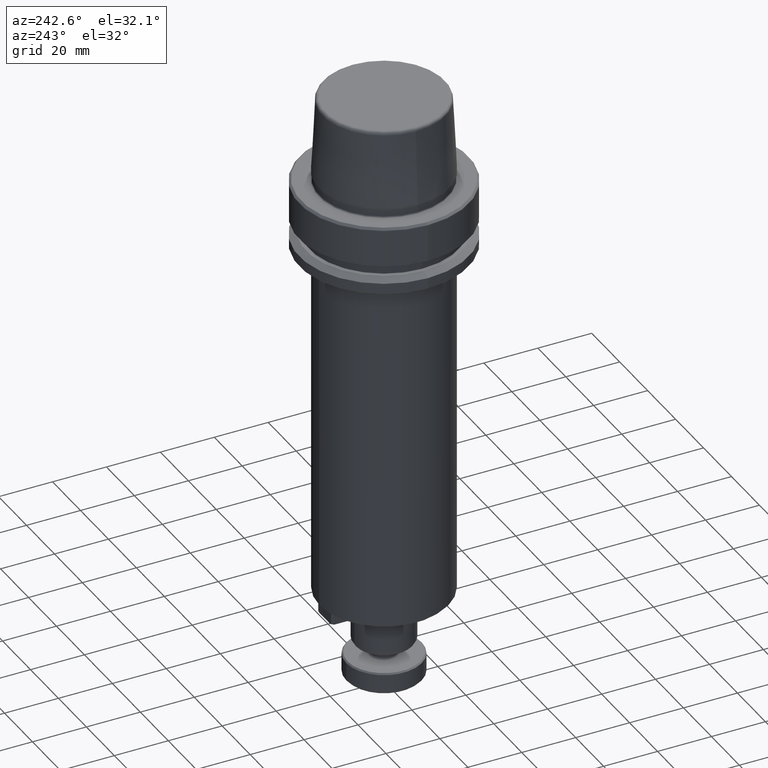
[diagram: clean part render]
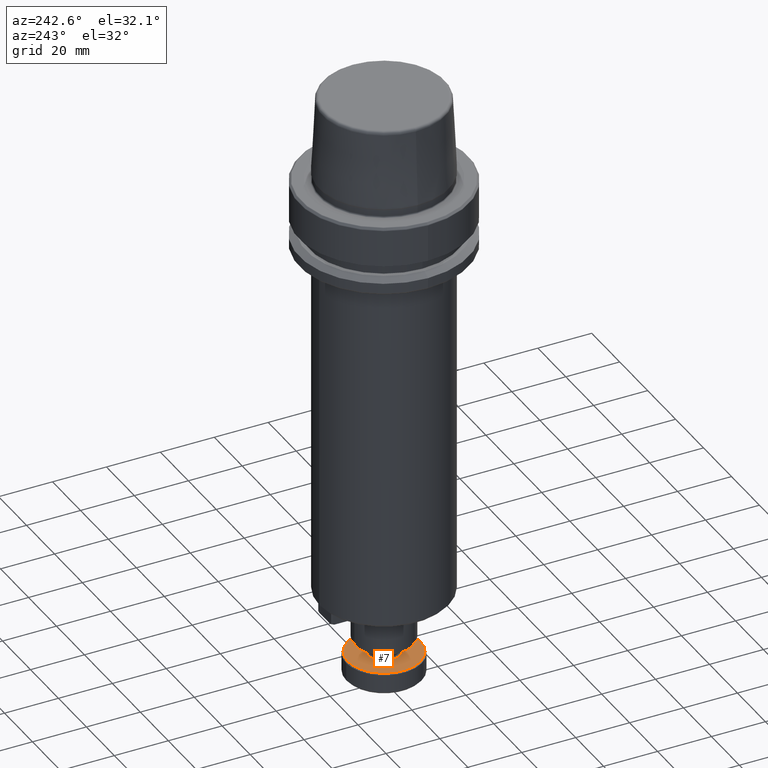
[diagram: same view with one face highlighted and labeled with its STEP entity id]
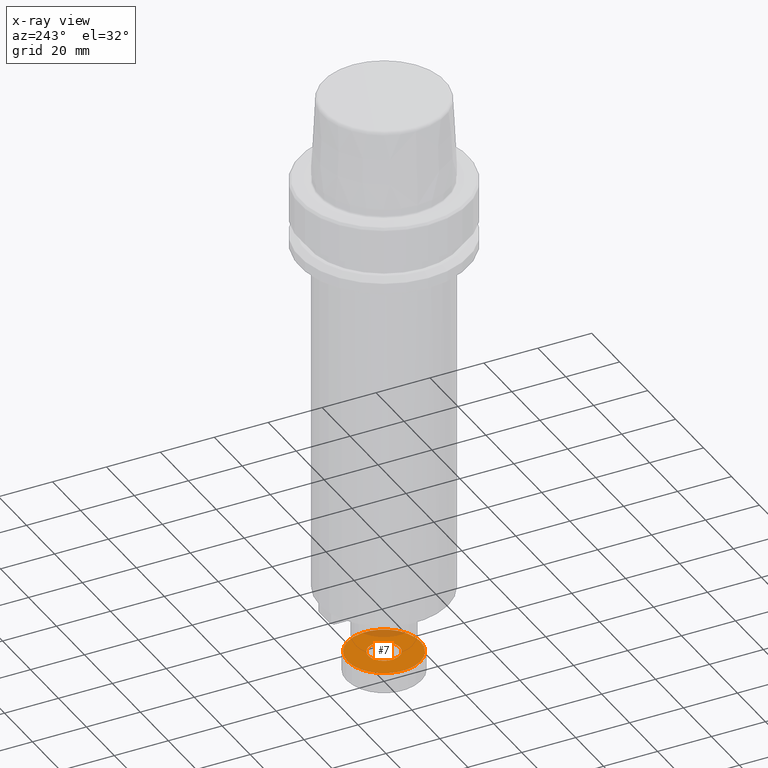
[diagram: x-ray of the same camera — body ghosted, the highlighted face saturated]
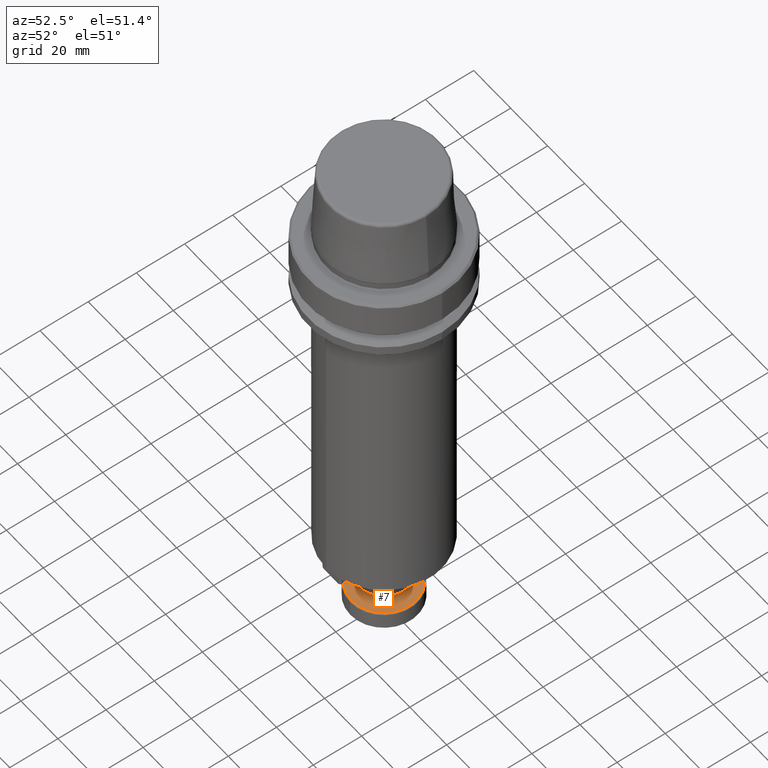
[diagram: same view with one face highlighted and labeled with its STEP entity id]
A machine part, auxiliary view. The second image highlights one B-rep face of the part: STEP entity #7.
The next image is the same camera in x-ray: the body ghosted, the highlighted face saturated — about 10% of this face is hidden behind the body in this view.
A second angle (auxiliary view) of the same face is appended — the face is thin or edge-on in the first view.
In plain terms, the highlighted planar face has unit normal (0, 0, -1).
Its self-contained STEP definition (entity closure, byte-faithful):
#7 = ADVANCED_FACE ( 'NONE', ( #2688, #2441 ), #2534, .F. ) ;
#25 = EDGE_LOOP ( 'NONE', ( #2661, #1661 ) ) ;
#70 = VERTEX_POINT ( 'NONE', #1613 ) ;
#79 = DIRECTION ( 'NONE',  ( 0.0000000000000000000, 1.000000000000000000, 7.859549893731944200E-018 ) ) ;
#285 = EDGE_CURVE ( 'NONE', #1950, #348, #1195, .T. ) ;
#303 = CARTESIAN_POINT ( 'NONE',  ( 0.0000000000000000000, 14.00000000000000000, -184.0000000000000000 ) ) ;
#345 = CARTESIAN_POINT ( 'NONE',  ( 0.0000000000000000000, -1.251500300419339200E-015, -184.0000000000000000 ) ) ;
#348 = VERTEX_POINT ( 'NONE', #1278 ) ;
#411 = DIRECTION ( 'NONE',  ( 0.0000000000000000000, 1.000000000000000000, 0.0000000000000000000 ) ) ;
#468 = EDGE_LOOP ( 'NONE', ( #1042, #1605 ) ) ;
#619 = DIRECTION ( 'NONE',  ( -0.0000000000000000000, -7.859549893731944200E-018, 1.000000000000000000 ) ) ;
#656 = AXIS2_PLACEMENT_3D ( 'NONE', #1927, #619, #411 ) ;
#768 = DIRECTION ( 'NONE',  ( 0.0000000000000000000, 1.000000000000000000, 0.0000000000000000000 ) ) ;
#962 = DIRECTION ( 'NONE',  ( 0.0000000000000000000, 7.859549893731944200E-018, -1.000000000000000000 ) ) ;
#1021 = AXIS2_PLACEMENT_3D ( 'NONE', #2291, #962, #2506 ) ;
#1042 = ORIENTED_EDGE ( 'NONE', *, *, #285, .T. ) ;
#1158 = EDGE_CURVE ( 'NONE', #1940, #70, #1643, .T. ) ;
#1171 = CARTESIAN_POINT ( 'NONE',  ( 0.0000000000000000000, 13.49999999999999600, -184.0000000000000000 ) ) ;
#1195 = CIRCLE ( 'NONE', #656, 13.49999999999999800 ) ;
#1245 = DIRECTION ( 'NONE',  ( -0.0000000000000000000, -7.859549893731944200E-018, 1.000000000000000000 ) ) ;
#1278 = CARTESIAN_POINT ( 'NONE',  ( 1.683889348827610900E-015, -13.50000000000000000, -184.0000000000000000 ) ) ;
#1305 = EDGE_CURVE ( 'NONE', #348, #1950, #2524, .T. ) ;
#1334 = AXIS2_PLACEMENT_3D ( 'NONE', #2308, #1245, #768 ) ;
#1444 = AXIS2_PLACEMENT_3D ( 'NONE', #303, #2464, #79 ) ;
#1605 = ORIENTED_EDGE ( 'NONE', *, *, #1305, .T. ) ;
#1613 = CARTESIAN_POINT ( 'NONE',  ( 7.102951435054648700E-016, -5.800000000000002500, -184.0000000000000000 ) ) ;
#1641 = DIRECTION ( 'NONE',  ( 0.0000000000000000000, 1.000000000000000000, 0.0000000000000000000 ) ) ;
#1643 = CIRCLE ( 'NONE', #2560, 5.800000000000001600 ) ;
#1661 = ORIENTED_EDGE ( 'NONE', *, *, #1987, .T. ) ;
#1851 = DIRECTION ( 'NONE',  ( 0.0000000000000000000, 7.859549893731944200E-018, -1.000000000000000000 ) ) ;
#1927 = CARTESIAN_POINT ( 'NONE',  ( 0.0000000000000000000, -1.251500300419339000E-015, -184.0000000000000000 ) ) ;
#1940 = VERTEX_POINT ( 'NONE', #2272 ) ;
#1950 = VERTEX_POINT ( 'NONE', #1171 ) ;
#1987 = EDGE_CURVE ( 'NONE', #70, #1940, #2444, .T. ) ;
#2272 = CARTESIAN_POINT ( 'NONE',  ( 0.0000000000000000000, 5.800000000000000700, -184.0000000000000000 ) ) ;
#2291 = CARTESIAN_POINT ( 'NONE',  ( 0.0000000000000000000, -1.251500300419339200E-015, -184.0000000000000000 ) ) ;
#2308 = CARTESIAN_POINT ( 'NONE',  ( 0.0000000000000000000, -1.251500300419339000E-015, -184.0000000000000000 ) ) ;
#2441 = FACE_OUTER_BOUND ( 'NONE', #468, .T. ) ;
#2444 = CIRCLE ( 'NONE', #1021, 5.800000000000001600 ) ;
#2464 = DIRECTION ( 'NONE',  ( 0.0000000000000000000, 7.859549893731944200E-018, -1.000000000000000000 ) ) ;
#2506 = DIRECTION ( 'NONE',  ( 0.0000000000000000000, 1.000000000000000000, 0.0000000000000000000 ) ) ;
#2524 = CIRCLE ( 'NONE', #1334, 13.49999999999999800 ) ;
#2534 = PLANE ( 'NONE',  #1444 ) ;
#2560 = AXIS2_PLACEMENT_3D ( 'NONE', #345, #1851, #1641 ) ;
#2661 = ORIENTED_EDGE ( 'NONE', *, *, #1158, .T. ) ;
#2688 = FACE_BOUND ( 'NONE', #25, .T. ) ;